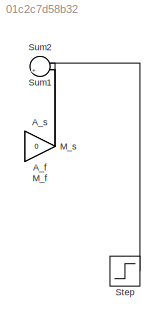
MODEL slx_01c2c7d58b32
KIND model
CONFIG AbsTol = auto
CONFIG EnableMultiTasking = off
CONFIG FixedStep = auto
CONFIG MaxStep = auto
CONFIG MinStep = auto
CONFIG RelTol = 1e-3
CONFIG SampleTimeConstraint = Unconstrained
CONFIG SolverName = VariableStepAuto
CONFIG StartTime = 0.0
CONFIG StopTime = 10.0
BLOCK [Gain] A_f
  Gain = 0
BLOCK [Gain] A_s
  Gain = 0
BLOCK [Gain] M_f
  Gain = 0
BLOCK [Gain] M_s
  Gain = 0
BLOCK [Step] Step
  SampleTime = 0
  Time = 0
BLOCK [Sum] Sum1
  Inputs = |++
  Ports = [2, 1]
BLOCK [Sum] Sum2
  Inputs = |++
  Ports = [2, 1]
LINE A_f:1 -> Sum2:1
LINE A_s:1 -> Sum1:2
LINE M_s:1 -> Sum2:2
LINE Step:1 -> Sum1:1
